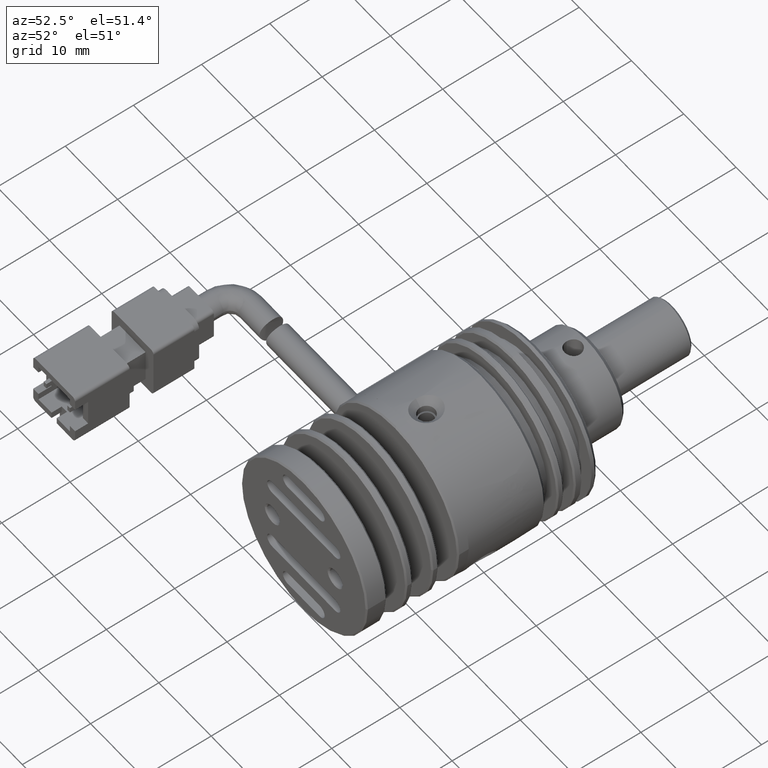
[diagram: clean part render]
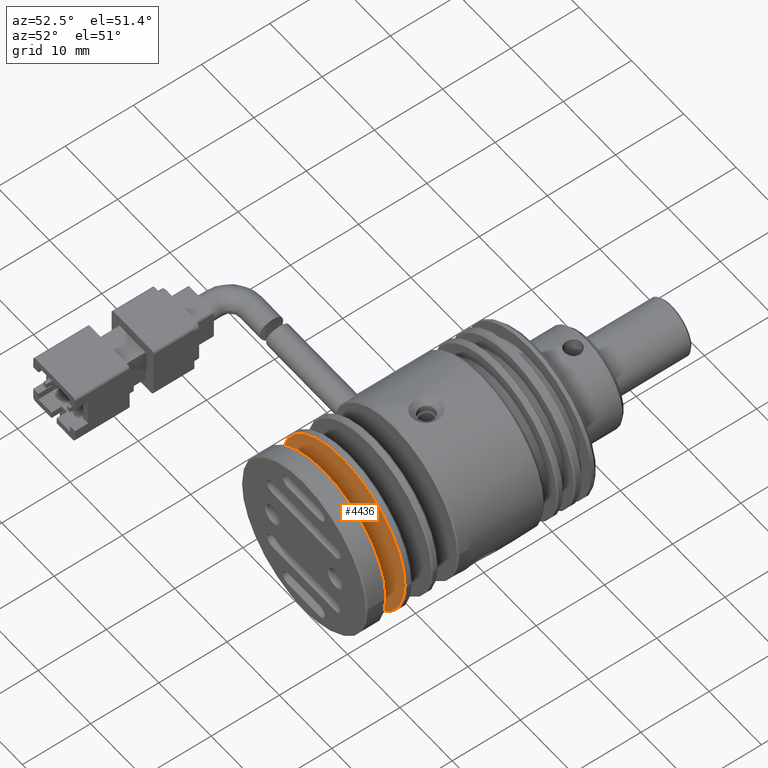
[diagram: same view with one face highlighted and labeled with its STEP entity id]
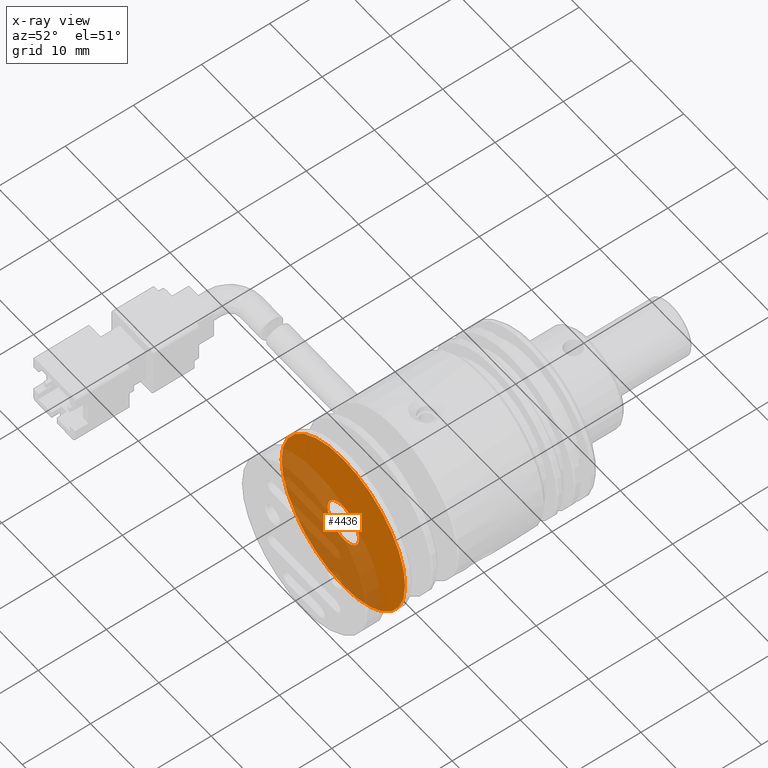
[diagram: x-ray of the same camera — body ghosted, the highlighted face saturated]
A machine part, auxiliary view. The second image highlights one B-rep face of the part: STEP entity #4436.
The next image is the same camera in x-ray: the body ghosted, the highlighted face saturated — about 50% of this face is hidden behind the body in this view.
In plain terms, the highlighted planar face has unit normal (-0, -1, -0).
Its self-contained STEP definition (entity closure, byte-faithful):
#639 = VERTEX_POINT ( 'NONE', #5764 ) ;
#902 = CIRCLE ( 'NONE', #1068, 11.79999999999999900 ) ;
#1068 = AXIS2_PLACEMENT_3D ( 'NONE', #13333, #4450, #14826 ) ;
#1446 = AXIS2_PLACEMENT_3D ( 'NONE', #2341, #12664, #3825 ) ;
#1573 = DIRECTION ( 'NONE',  ( 8.260587980841938800E-017, 1.000000000000000000, -0.0000000000000000000 ) ) ;
#2341 = CARTESIAN_POINT ( 'NONE',  ( 2.574933787635818900, -24.91493551001260100, -9.174035921659385200 ) ) ;
#2724 = DIRECTION ( 'NONE',  ( 8.260587980841938800E-017, 1.000000000000000000, -0.0000000000000000000 ) ) ;
#2764 = CARTESIAN_POINT ( 'NONE',  ( 2.574933787635819800, -24.91493551001260100, -20.97403592165938600 ) ) ;
#3524 = AXIS2_PLACEMENT_3D ( 'NONE', #11565, #2724, #13081 ) ;
#3693 = AXIS2_PLACEMENT_3D ( 'NONE', #7455, #17838, #8967 ) ;
#3825 = DIRECTION ( 'NONE',  ( 0.0000000000000000000, 0.0000000000000000000, 1.000000000000000000 ) ) ;
#4436 = ADVANCED_FACE ( 'NONE', ( #15935, #12429 ), #10389, .T. ) ;
#4450 = DIRECTION ( 'NONE',  ( -0.0000000000000000000, -1.000000000000000000, 3.614007241618349800E-017 ) ) ;
#4542 = VERTEX_POINT ( 'NONE', #13664 ) ;
#5596 = ORIENTED_EDGE ( 'NONE', *, *, #10417, .T. ) ;
#5764 = CARTESIAN_POINT ( 'NONE',  ( 2.574933787635818900, -24.91493551001260100, 2.625964078340615100 ) ) ;
#6144 = ORIENTED_EDGE ( 'NONE', *, *, #8572, .T. ) ;
#6428 = ORIENTED_EDGE ( 'NONE', *, *, #14273, .T. ) ;
#6818 = EDGE_CURVE ( 'NONE', #639, #14741, #17912, .T. ) ;
#7298 = CIRCLE ( 'NONE', #18073, 3.000000000000000000 ) ;
#7455 = CARTESIAN_POINT ( 'NONE',  ( 14.57493378763581600, -24.91493551001260400, -9.174035921659385200 ) ) ;
#7711 = CIRCLE ( 'NONE', #3524, 3.000000000000000000 ) ;
#8034 = EDGE_LOOP ( 'NONE', ( #10828, #6144 ) ) ;
#8572 = EDGE_CURVE ( 'NONE', #14741, #639, #902, .T. ) ;
#8967 = DIRECTION ( 'NONE',  ( -1.000000000000000000, 8.260587980841938800E-017, 0.0000000000000000000 ) ) ;
#9489 = VERTEX_POINT ( 'NONE', #16407 ) ;
#10389 = PLANE ( 'NONE',  #3693 ) ;
#10417 = EDGE_CURVE ( 'NONE', #9489, #4542, #7298, .T. ) ;
#10428 = CARTESIAN_POINT ( 'NONE',  ( 2.574933787635819400, -24.91493551001260400, -9.174035921659385200 ) ) ;
#10682 = EDGE_LOOP ( 'NONE', ( #5596, #6428 ) ) ;
#10828 = ORIENTED_EDGE ( 'NONE', *, *, #6818, .T. ) ;
#11565 = CARTESIAN_POINT ( 'NONE',  ( 2.574933787635819400, -24.91493551001260400, -9.174035921659385200 ) ) ;
#11905 = DIRECTION ( 'NONE',  ( -1.000000000000000000, 0.0000000000000000000, 0.0000000000000000000 ) ) ;
#12429 = FACE_OUTER_BOUND ( 'NONE', #8034, .T. ) ;
#12664 = DIRECTION ( 'NONE',  ( -0.0000000000000000000, -1.000000000000000000, 3.614007241618349800E-017 ) ) ;
#13081 = DIRECTION ( 'NONE',  ( -1.000000000000000000, 0.0000000000000000000, 0.0000000000000000000 ) ) ;
#13333 = CARTESIAN_POINT ( 'NONE',  ( 2.574933787635818900, -24.91493551001260100, -9.174035921659385200 ) ) ;
#13664 = CARTESIAN_POINT ( 'NONE',  ( 5.574933787635819400, -24.91493551001260400, -9.174035921659385200 ) ) ;
#14273 = EDGE_CURVE ( 'NONE', #4542, #9489, #7711, .T. ) ;
#14741 = VERTEX_POINT ( 'NONE', #2764 ) ;
#14826 = DIRECTION ( 'NONE',  ( 0.0000000000000000000, 0.0000000000000000000, 1.000000000000000000 ) ) ;
#15935 = FACE_BOUND ( 'NONE', #10682, .T. ) ;
#16407 = CARTESIAN_POINT ( 'NONE',  ( -0.4250662123641809100, -24.91493551001260400, -9.174035921659385200 ) ) ;
#17838 = DIRECTION ( 'NONE',  ( -8.260587980841938800E-017, -1.000000000000000000, -0.0000000000000000000 ) ) ;
#17912 = CIRCLE ( 'NONE', #1446, 11.79999999999999900 ) ;
#18073 = AXIS2_PLACEMENT_3D ( 'NONE', #10428, #1573, #11905 ) ;